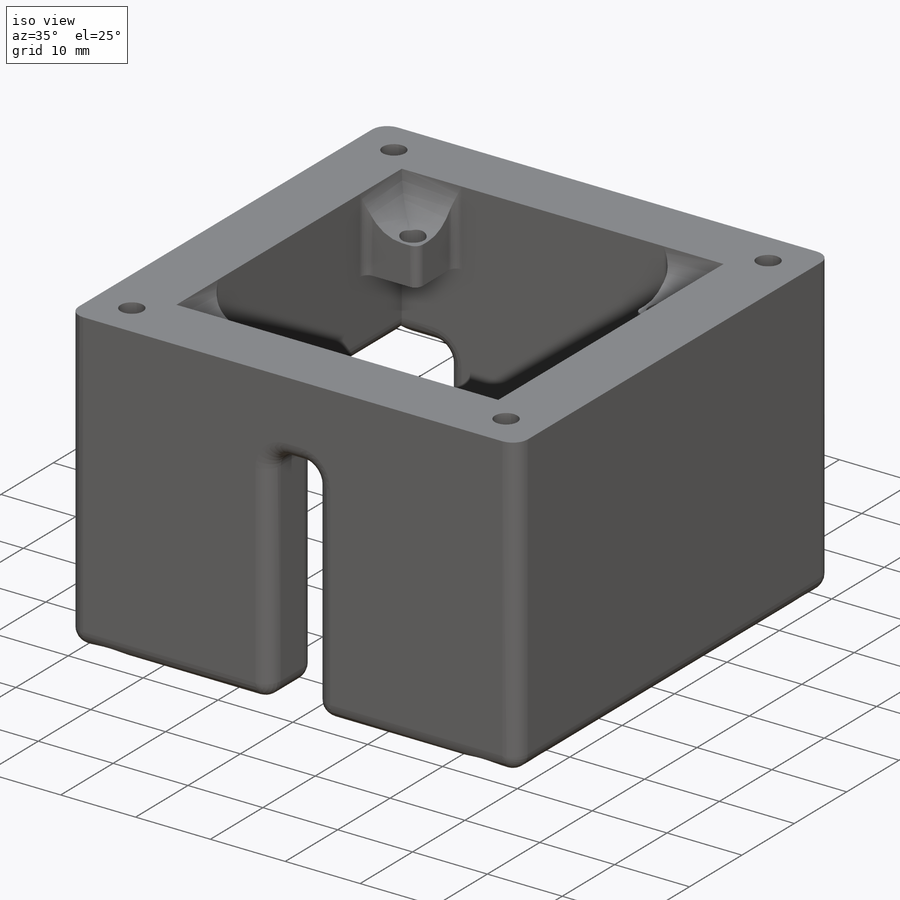
[diagram: iso view]
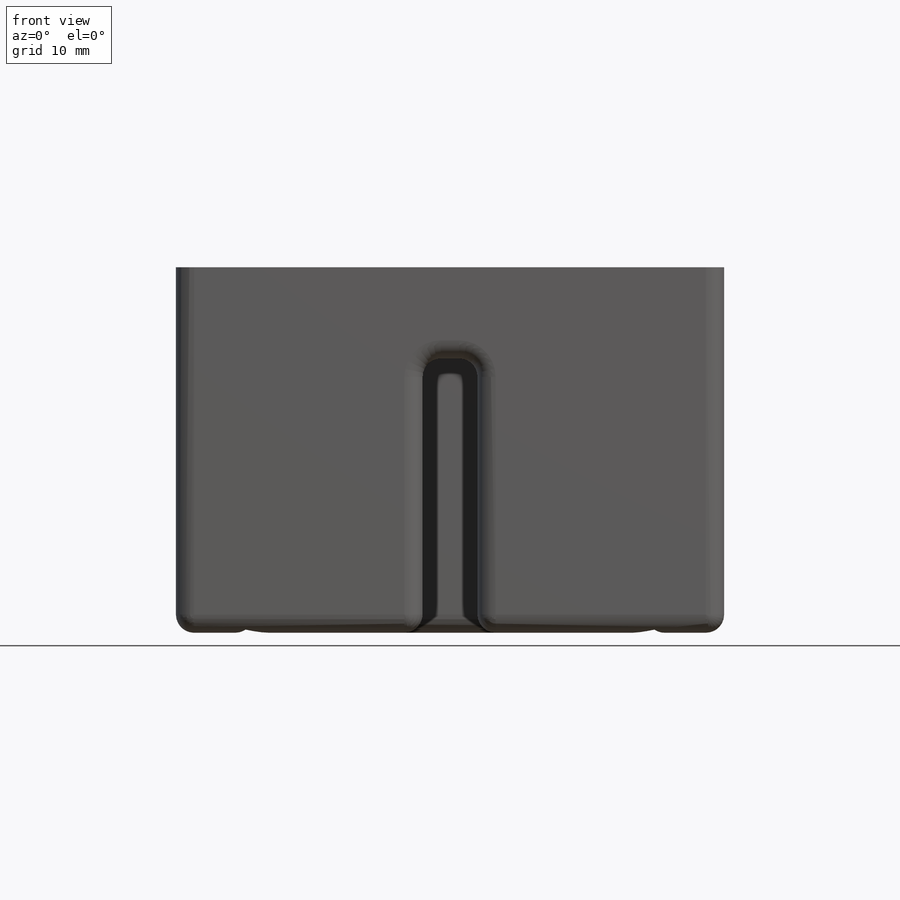
[diagram: front view]
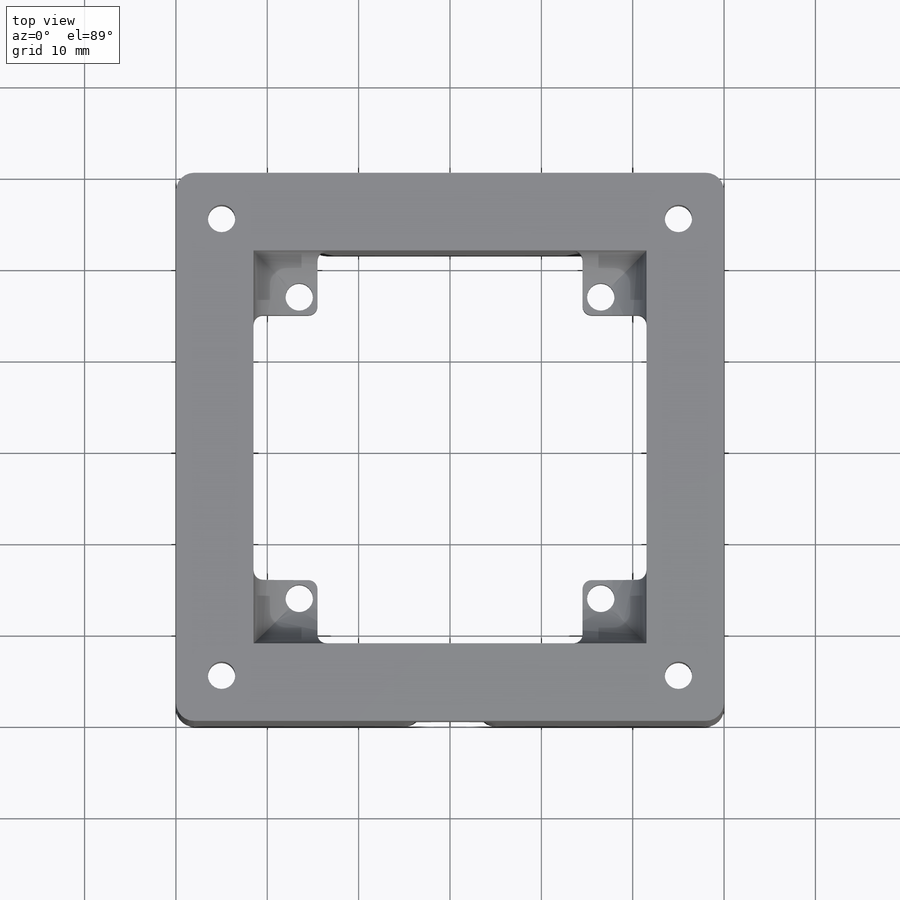
[diagram: top view]
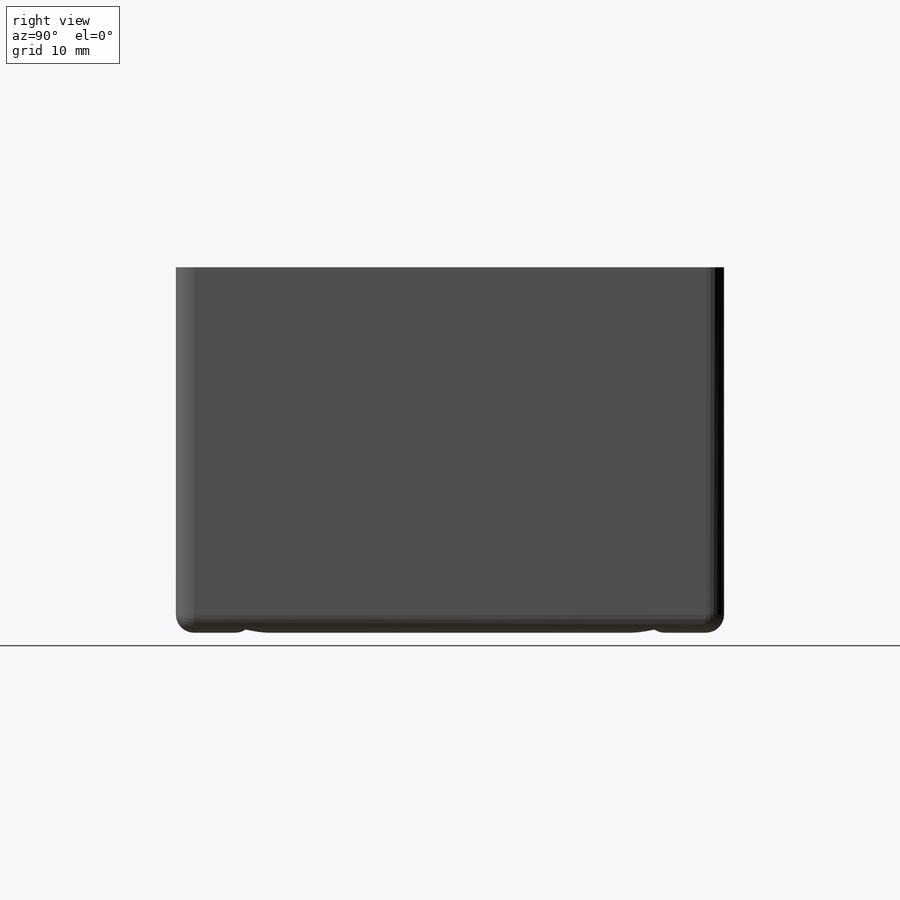
[diagram: right view]
SOLIDWORKS PART (.sldprt)
format: sldprt  version: not decoded by parser v0  size: 623,616 bytes
history: native  units: mm
features: sketch x8, fillet x6, cut_extrude x5, plane x3, extrude x3, material x1 (+10 scaffold rows collapsed)
feature tree (36):
  scaffold x10  (default folders/planes/origin — collapsed)
  material  "Matériau <non spécifié>"
  plane  "Plan de face"
  plane  "Plan de dessus"
  plane  "Plan de droite"
  sketch  "Esquisse1"  dims[D1=43.0mm D2=43.0mm D3=60.0mm D4=60.0mm D5=21.5mm D6=21.5mm D7=30.0mm D8=30.0mm]
  extrude  "Boss.-Extru.1"  Depth=5mm
  sketch  "Esquisse2"  dims[D1=0.0mm]
  extrude  "Boss.-Extru.2"  Depth=5mm
  sketch  "Esquisse3"  dims[D3=3.0mm D4=3.0mm D1=0.0mm D2=0.0mm]
  extrude  "Boss.-Extru.3"  Depth=30mm
  sketch  "Esquisse4"  dims[D1=7.0mm D2=7.0mm D3=7.0mm D4=7.0mm D5=7.0mm D6=7.0mm D7=7.0mm D8=7.0mm]
  cut_extrude  "Enlèv. mat.-Extru.1"  Depth=30mm
  sketch  "Esquisse5"  dims[D1=3.0mm D4=3.0mm D8=3.0mm D9=3.0mm D2=5.0mm D3=5.0mm D5=5.0mm D6=5.0mm D7=5.0mm D10=5.0mm]
  cut_extrude  "Enlèv. mat.-Extru.2"  Depth=30mm
  sketch  "Esquisse6"  dims[c1.D1=8.0mm c1.D9=8.0mm c1.D10=8.0mm c1.D11=8.0mm c1.D2=10.0mm c1.D3=~13.118467mm c2.D2=5.0mm c2.D3=5.0mm c2.D4=5.0mm c2.D5=5.0mm c2.D6=~14.925823mm c3.D6=90.0deg c4.D6=5.0mm c4.D7=5.0mm c4.D8=5.0mm c4.D12=5.0mm]
  cut_extrude  "Enlèv. mat.-Extru.3"  Depth=30mm
  sketch  "Esquisse7"  dims[D1=2.5mm]
  cut_extrude  "Enlèv. mat.-Extru.4"  Depth=30mm
  fillet  "Congé1"  Radius=5mm
  sketch  "Esquisse8"  dims[D1=25.0mm D2=37.0mm]
  cut_extrude  "Enlèv. mat.-Extru.5"  Depth=20mm
  fillet  "Congé10"  Radius=2mm
  fillet  "Congé11"  Radius=2mm
  fillet  "Congé12"  Radius=2mm
  fillet  "Congé13"  Radius=2mm
  fillet  "Congé14"  Radius=1mm
decode coverage: 22 of 22 modeling features carry decoded parameters
note: ~ marks probable driven/reference dimensions
note: suppression state not decoded; provenance and decode notes live in map.json
